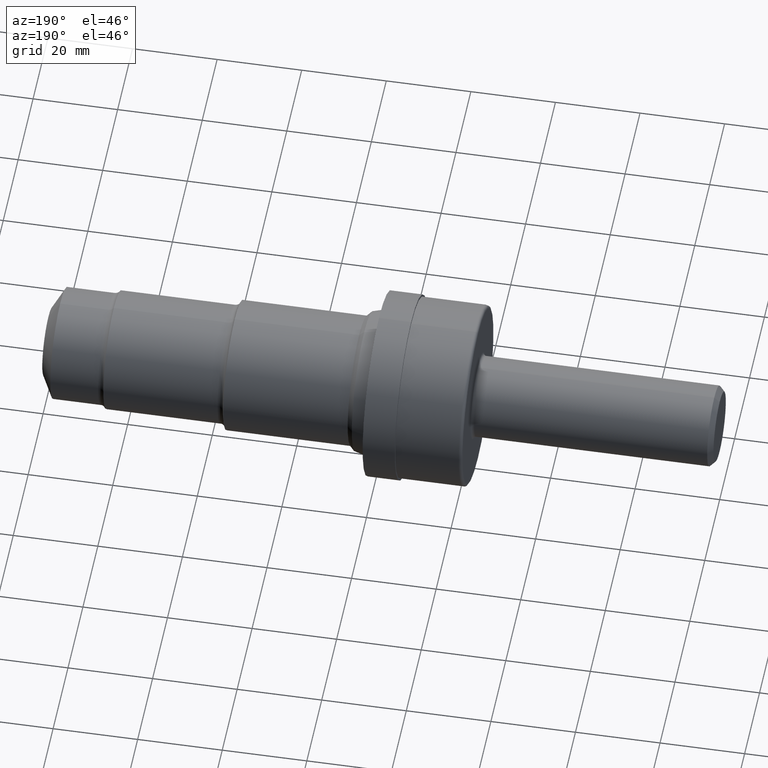
[diagram: clean part render]
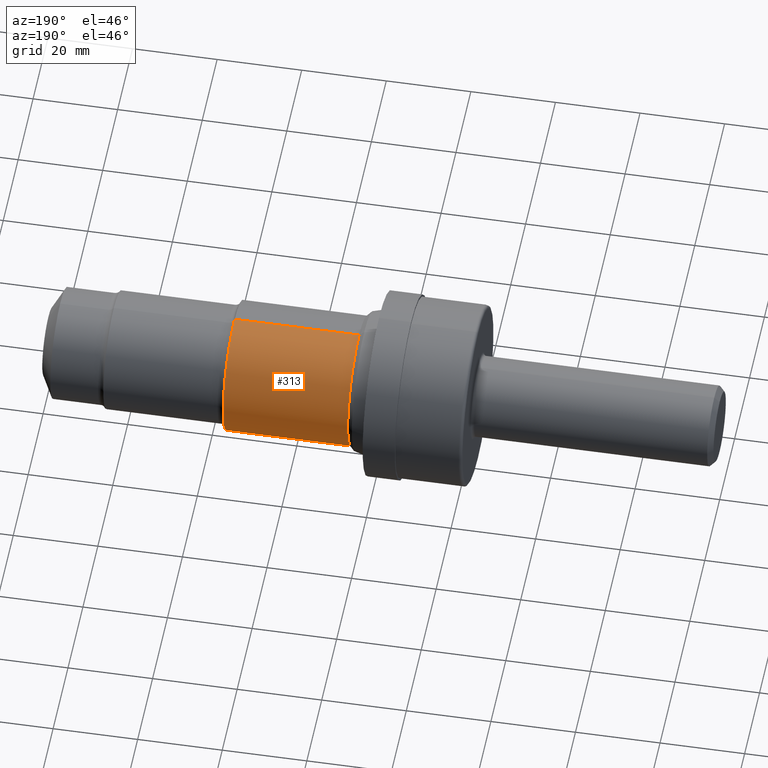
[diagram: same view with one face highlighted and labeled with its STEP entity id]
A machine part, auxiliary view. The second image highlights one B-rep face of the part: STEP entity #313.
In plain terms, the highlighted cylindrical surface (partial cylindrical patch) has radius 15.3543 mm, axis along (-1, -0, -0).
Its self-contained STEP definition (entity closure, byte-faithful):
#7 = CARTESIAN_POINT ( 'NONE',  ( 0.0000000000000000000, 0.0000000000000000000, 0.6045000000000000373 ) ) ;
#22 = DIRECTION ( 'NONE',  ( 0.0000000000000000000, 0.0000000000000000000, 1.000000000000000000 ) ) ;
#63 = AXIS2_PLACEMENT_3D ( 'NONE', #894, #515, #453 ) ;
#106 = LINE ( 'NONE', #7, #858 ) ;
#137 = EDGE_CURVE ( 'NONE', #324, #231, #622, .T. ) ;
#154 = EDGE_CURVE ( 'NONE', #271, #730, #269, .T. ) ;
#168 = CARTESIAN_POINT ( 'NONE',  ( 4.516000000000000902, 0.0000000000000000000, 0.6045000000000000373 ) ) ;
#193 = EDGE_CURVE ( 'NONE', #730, #231, #389, .T. ) ;
#231 = VERTEX_POINT ( 'NONE', #402 ) ;
#269 = CIRCLE ( 'NONE', #618, 0.6045000000000000373 ) ;
#271 = VERTEX_POINT ( 'NONE', #168 ) ;
#282 = DIRECTION ( 'NONE',  ( -1.000000000000000000, -0.0000000000000000000, -0.0000000000000000000 ) ) ;
#313 = ADVANCED_FACE ( 'NONE', ( #738 ), #317, .T. ) ;
#317 = CYLINDRICAL_SURFACE ( 'NONE', #63, 0.6045000000000000373 ) ;
#324 = VERTEX_POINT ( 'NONE', #382 ) ;
#334 = DIRECTION ( 'NONE',  ( -1.000000000000000000, -0.0000000000000000000, -0.0000000000000000000 ) ) ;
#337 = EDGE_LOOP ( 'NONE', ( #712, #475, #824, #926 ) ) ;
#341 = CARTESIAN_POINT ( 'NONE',  ( 3.356523011444505045, 0.0000000000000000000, 0.0000000000000000000 ) ) ;
#354 = EDGE_CURVE ( 'NONE', #271, #324, #106, .T. ) ;
#382 = CARTESIAN_POINT ( 'NONE',  ( 3.356523011444505045, 0.0000000000000000000, 0.6045000000000000373 ) ) ;
#389 = LINE ( 'NONE', #564, #804 ) ;
#402 = CARTESIAN_POINT ( 'NONE',  ( 3.356523011444505045, 7.687861186106794712E-17, -0.6045000000000000373 ) ) ;
#421 = CARTESIAN_POINT ( 'NONE',  ( 4.516000000000000902, 0.0000000000000000000, 0.0000000000000000000 ) ) ;
#441 = AXIS2_PLACEMENT_3D ( 'NONE', #341, #334, #22 ) ;
#453 = DIRECTION ( 'NONE',  ( 0.0000000000000000000, 0.0000000000000000000, 1.000000000000000000 ) ) ;
#475 = ORIENTED_EDGE ( 'NONE', *, *, #193, .T. ) ;
#515 = DIRECTION ( 'NONE',  ( -1.000000000000000000, -0.0000000000000000000, -0.0000000000000000000 ) ) ;
#564 = CARTESIAN_POINT ( 'NONE',  ( 0.0000000000000000000, 7.402989900845751618E-17, -0.6045000000000000373 ) ) ;
#573 = DIRECTION ( 'NONE',  ( -1.000000000000000000, -0.0000000000000000000, -0.0000000000000000000 ) ) ;
#618 = AXIS2_PLACEMENT_3D ( 'NONE', #421, #706, #923 ) ;
#622 = CIRCLE ( 'NONE', #441, 0.6045000000000000373 ) ;
#706 = DIRECTION ( 'NONE',  ( -1.000000000000000000, -0.0000000000000000000, -0.0000000000000000000 ) ) ;
#712 = ORIENTED_EDGE ( 'NONE', *, *, #154, .T. ) ;
#730 = VERTEX_POINT ( 'NONE', #928 ) ;
#738 = FACE_OUTER_BOUND ( 'NONE', #337, .T. ) ;
#804 = VECTOR ( 'NONE', #282, 39.37007874015748143 ) ;
#824 = ORIENTED_EDGE ( 'NONE', *, *, #137, .F. ) ;
#858 = VECTOR ( 'NONE', #573, 39.37007874015748143 ) ;
#894 = CARTESIAN_POINT ( 'NONE',  ( 0.0000000000000000000, 0.0000000000000000000, 0.0000000000000000000 ) ) ;
#923 = DIRECTION ( 'NONE',  ( 0.0000000000000000000, 0.0000000000000000000, 1.000000000000000000 ) ) ;
#926 = ORIENTED_EDGE ( 'NONE', *, *, #354, .F. ) ;
#928 = CARTESIAN_POINT ( 'NONE',  ( 4.516000000000000902, 7.402989900845751618E-17, -0.6045000000000000373 ) ) ;